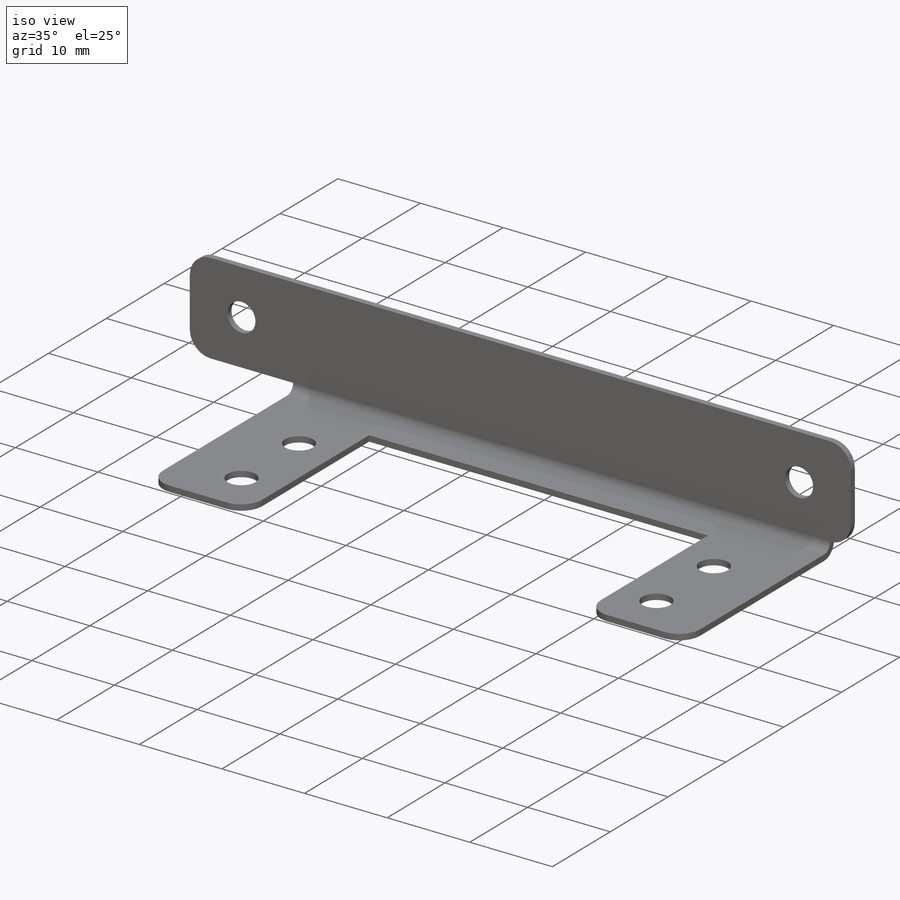
[diagram: iso view]
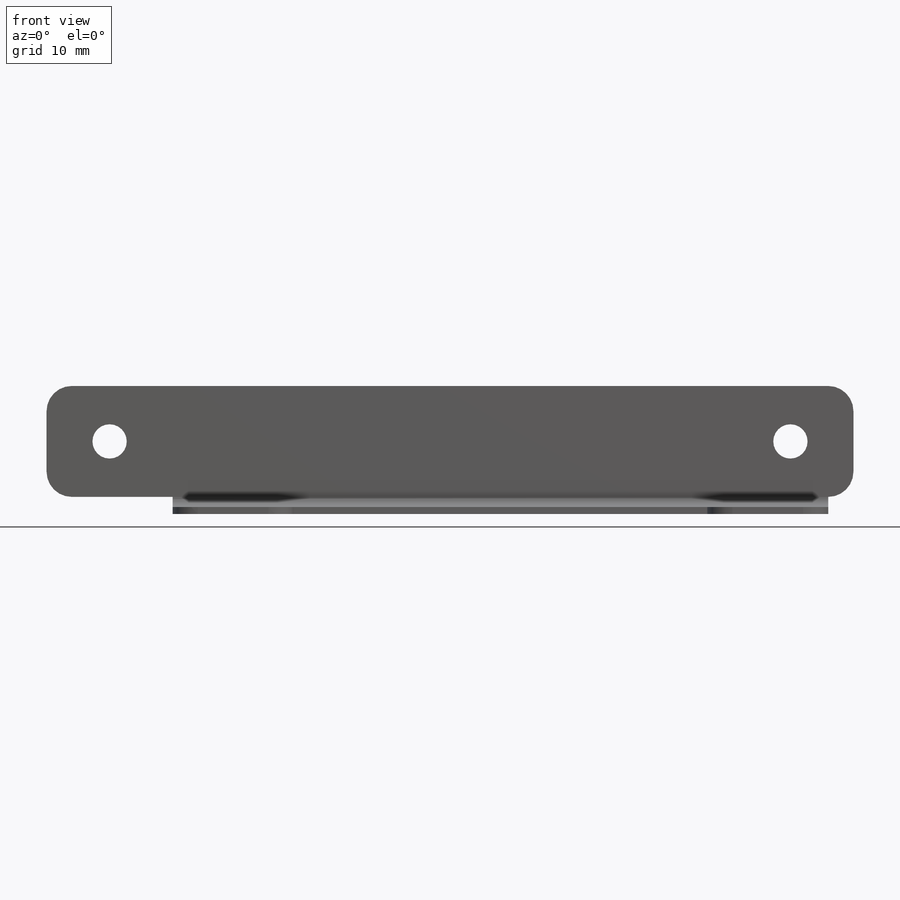
[diagram: front view]
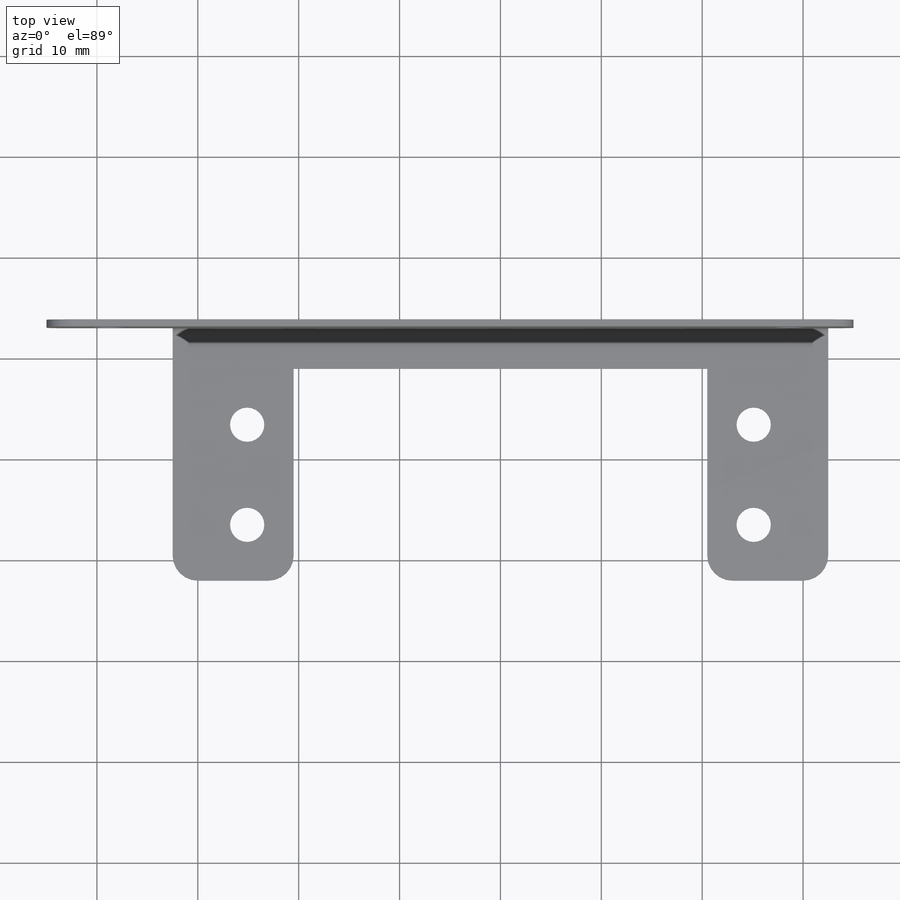
[diagram: top view]
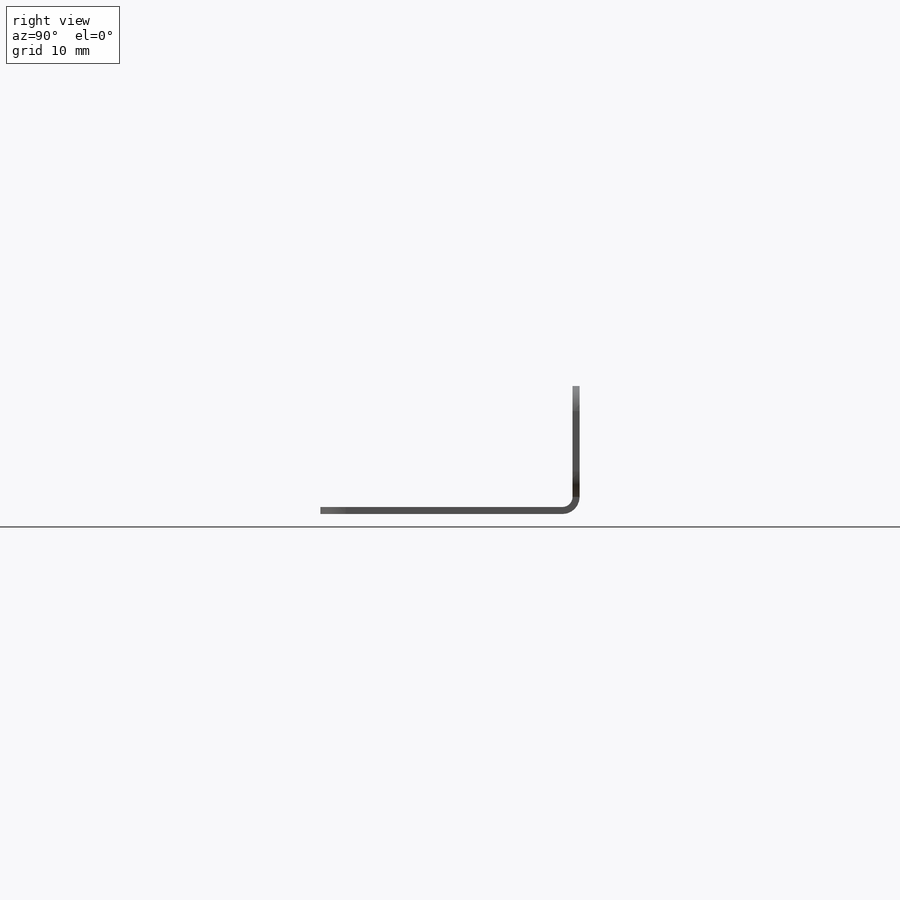
[diagram: right view]
SOLIDWORKS PART (.sldprt)
format: sldprt  version: not decoded by parser v0  size: 283,136 bytes
history: native  units: mm
features: sketch x9, sheet_metal_op x4, cut_extrude x3, material x1 + 1 further entry (+11 scaffold rows collapsed; 1 parser-record rows omitted)
feature tree (30):
  scaffold x11  (default folders/planes/origin — collapsed)
  material  "6061 Alloy"
  sketch  "Sketch1"  dims[D1=65.0mm D2=24.0mm]
  sheet_metal_op  "Sheet-Metal1"
  sheet_metal_op  "Base-Flange1"
  sketch  "Sketch6"  dims[c1.D1=1.0mm c1.D4=90.0deg c1.D5=1.0 c1.D8=0.35mm c1.D9=0.35mm c2.D1=1.0mm c2.D2=500.0mm c2.D3=0.0mm c2.D6=10.0mm c2.D7=12.0mm]
  sketch  "Sketch10"  dims[D1=2.5mm]
  sheet_metal_op  "Tab1"
  sketch  "Sketch11"  dims[D1=12.5mm]
  sheet_metal_op  "Tab2"
  sketch  "Sketch7"  dims[c1.D1=3.4mm c1.D2=67.5mm c1.D3=5.5mm c2.D2=67.5mm]
  cut_extrude  "Cut-Extrude1"  [1 undecoded]
  sketch  "Sketch8"  dims[D1=41.0mm D2=21.0mm]
  cut_extrude  "Cut-Extrude2"  [1 undecoded]
  sketch  "Sketch9"  dims[D1=3.4mm D2=9.931mm D3=50.216mm]
  cut_extrude  "Cut-Extrude3"  Depth=2.5mm
  "Flat-Pattern1"
  sketch  "Bend-Lines1"
  sketch  "Bounding-Box1"
  parser-record x1  (decoder bookkeeping rows leaked as tree rows — omitted from the tree; the rows remain in map.json)
decode coverage: 8 of 16 modeling features carry decoded parameters; 1 rows unclassified (native names shown)
note: 2 parameter values undecoded
note: suppression state not decoded; provenance and decode notes live in map.json
